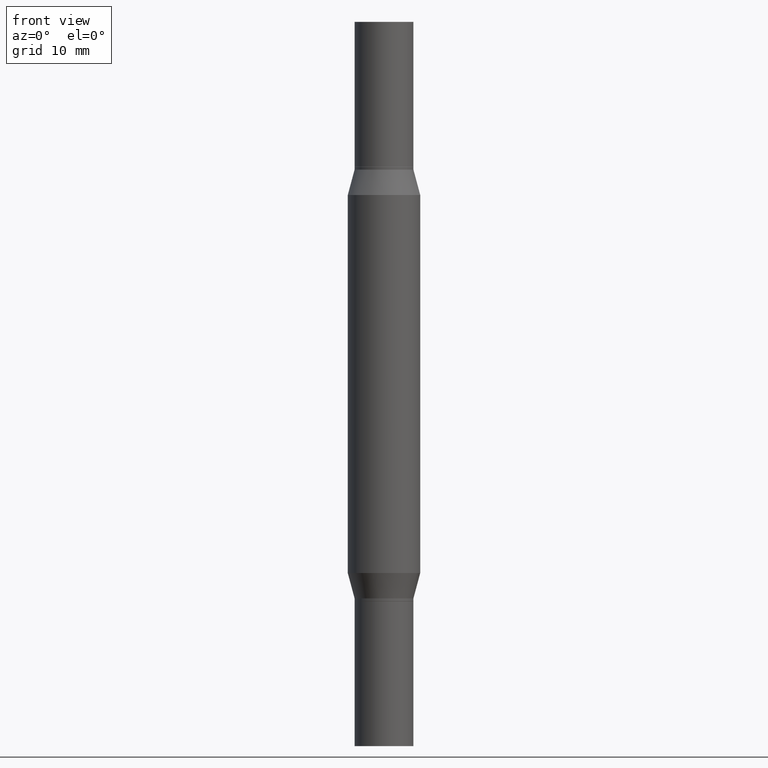
[diagram: clean part render]
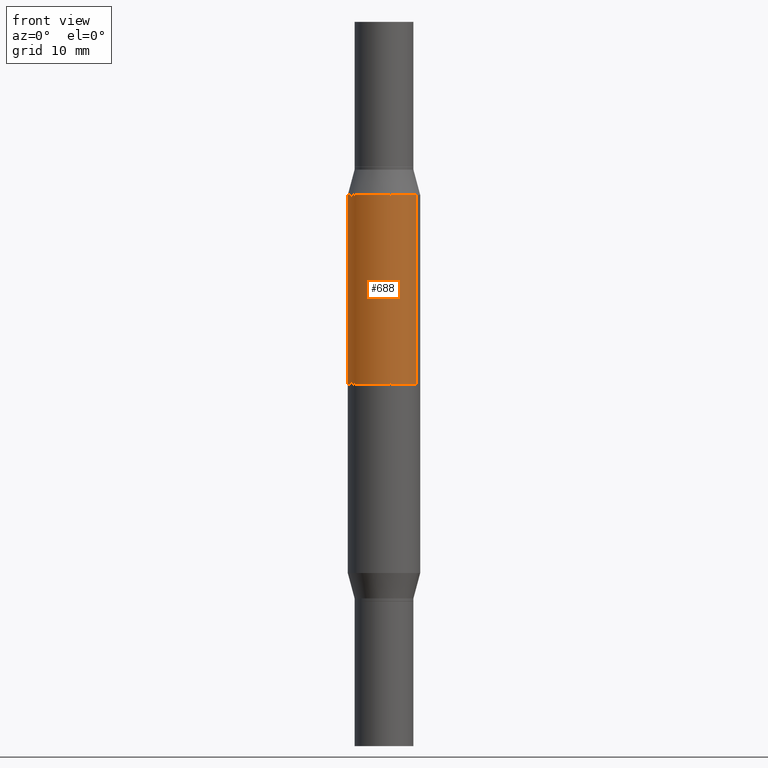
[diagram: same view with one face highlighted and labeled with its STEP entity id]
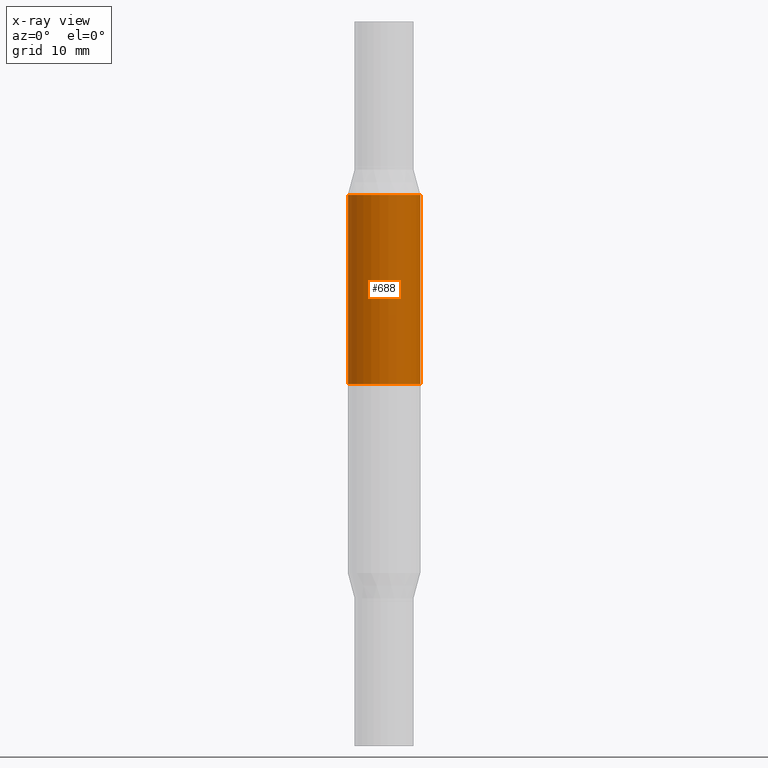
[diagram: x-ray of the same camera — body ghosted, the highlighted face saturated]
A machine part, front view. The second image highlights one B-rep face of the part: STEP entity #688.
The next image is the same camera in x-ray: the body ghosted, the highlighted face saturated — about 0% of this face is hidden behind the body in this view.
In plain terms, the highlighted cylindrical surface (edge-blend (fillet) strip) has radius 3.175 mm, axis along (-0, -0, -1).
Its self-contained STEP definition (entity closure, byte-faithful):
#44 = FACE_OUTER_BOUND ( 'NONE', #259, .T. ) ;
#62 = EDGE_CURVE ( 'NONE', #912, #384, #576, .T. ) ;
#72 = DIRECTION ( 'NONE',  ( -2.445468806185136877E-29, -3.491805094961123683E-15, -1.000000000000000000 ) ) ;
#74 = DIRECTION ( 'NONE',  ( 2.445468806185136597E-29, 3.491805094961124077E-15, 1.000000000000000000 ) ) ;
#98 = ORIENTED_EDGE ( 'NONE', *, *, #331, .F. ) ;
#149 = CIRCLE ( 'NONE', #700, 0.1250000000000000000 ) ;
#207 = CARTESIAN_POINT ( 'NONE',  ( 4.652463829924389037E-29, -2.086006783157758077E-15, -0.5975165914374901410 ) ) ;
#257 = CYLINDRICAL_SURFACE ( 'NONE', #289, 0.1250000000000000000 ) ;
#259 = EDGE_LOOP ( 'NONE', ( #800, #645, #98, #567 ) ) ;
#268 = DIRECTION ( 'NONE',  ( 1.000000000000000000, -6.982962677686262766E-15, 0.000000000000000000 ) ) ;
#279 = EDGE_CURVE ( 'NONE', #460, #912, #303, .T. ) ;
#281 = DIRECTION ( 'NONE',  ( 1.000000000000000000, -6.982962677686266711E-15, 0.000000000000000000 ) ) ;
#289 = AXIS2_PLACEMENT_3D ( 'NONE', #482, #785, #268 ) ;
#303 = CIRCLE ( 'NONE', #714, 0.1250000000000000000 ) ;
#331 = EDGE_CURVE ( 'NONE', #384, #911, #149, .T. ) ;
#384 = VERTEX_POINT ( 'NONE', #960 ) ;
#405 = CARTESIAN_POINT ( 'NONE',  ( -0.1250000000000000000, -2.367616978634402645E-15, -1.249999999999999778 ) ) ;
#460 = VERTEX_POINT ( 'NONE', #529 ) ;
#467 = CARTESIAN_POINT ( 'NONE',  ( 0.1250000000000000000, -2.958877117868543782E-15, -0.5975165914374901410 ) ) ;
#482 = CARTESIAN_POINT ( 'NONE',  ( 0.000000000000000000, -8.729108042255335103E-15, -2.499999999999999556 ) ) ;
#498 = DIRECTION ( 'NONE',  ( -2.445468806185136877E-29, -3.491805094961123683E-15, -1.000000000000000000 ) ) ;
#509 = VECTOR ( 'NONE', #72, 39.37007874015748143 ) ;
#520 = DIRECTION ( 'NONE',  ( -0.000000000000000000, -3.491643216902134830E-15, -1.000000000000000000 ) ) ;
#529 = CARTESIAN_POINT ( 'NONE',  ( -0.1250000000000000000, -1.228444533436318603E-15, -0.5975165914374901410 ) ) ;
#567 = ORIENTED_EDGE ( 'NONE', *, *, #62, .F. ) ;
#576 = LINE ( 'NONE', #875, #601 ) ;
#593 = LINE ( 'NONE', #893, #509 ) ;
#594 = DIRECTION ( 'NONE',  ( 0.000000000000000000, 1.000000000000000000, -4.370956789862821150E-15 ) ) ;
#601 = VECTOR ( 'NONE', #498, 39.37007874015748143 ) ;
#645 = ORIENTED_EDGE ( 'NONE', *, *, #856, .T. ) ;
#688 = ADVANCED_FACE ( 'NONE', ( #44 ), #257, .T. ) ;
#700 = AXIS2_PLACEMENT_3D ( 'NONE', #891, #520, #594 ) ;
#714 = AXIS2_PLACEMENT_3D ( 'NONE', #207, #74, #281 ) ;
#785 = DIRECTION ( 'NONE',  ( -2.445468806185136597E-29, -3.491805094961124077E-15, -1.000000000000000000 ) ) ;
#800 = ORIENTED_EDGE ( 'NONE', *, *, #279, .F. ) ;
#856 = EDGE_CURVE ( 'NONE', #460, #911, #593, .T. ) ;
#875 = CARTESIAN_POINT ( 'NONE',  ( 0.1250000000000000000, -9.601978376966118441E-15, -2.499999999999999556 ) ) ;
#891 = CARTESIAN_POINT ( 'NONE',  ( 3.056836007731420185E-29, -4.364351673553931682E-15, -1.249999999999999778 ) ) ;
#893 = CARTESIAN_POINT ( 'NONE',  ( -0.1250000000000000000, -7.871545792533893657E-15, -2.499999999999999556 ) ) ;
#911 = VERTEX_POINT ( 'NONE', #405 ) ;
#912 = VERTEX_POINT ( 'NONE', #467 ) ;
#960 = CARTESIAN_POINT ( 'NONE',  ( 0.1250000000000000000, -4.098049563066627035E-15, -1.249999999999999778 ) ) ;